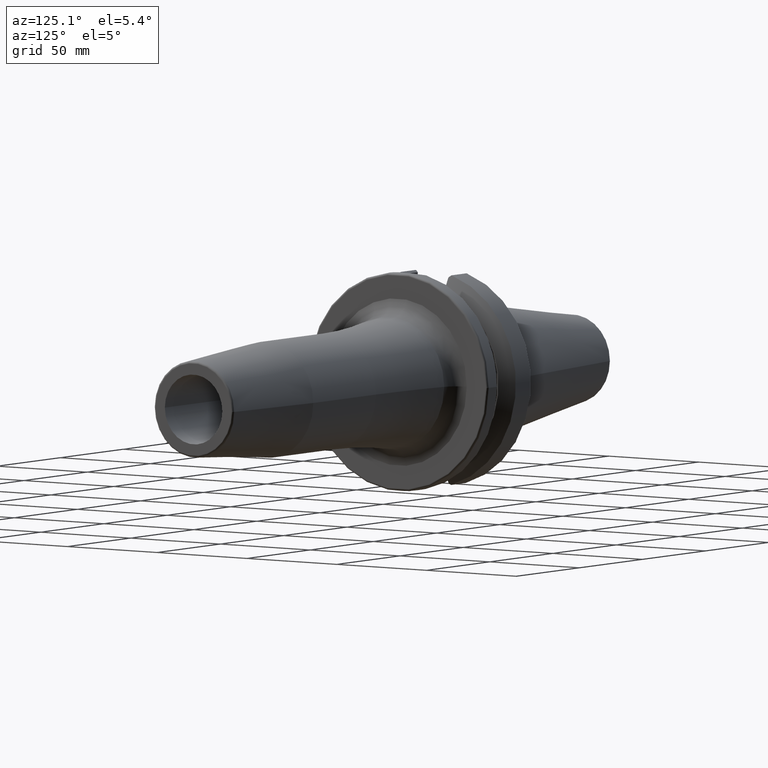
[diagram: clean part render]
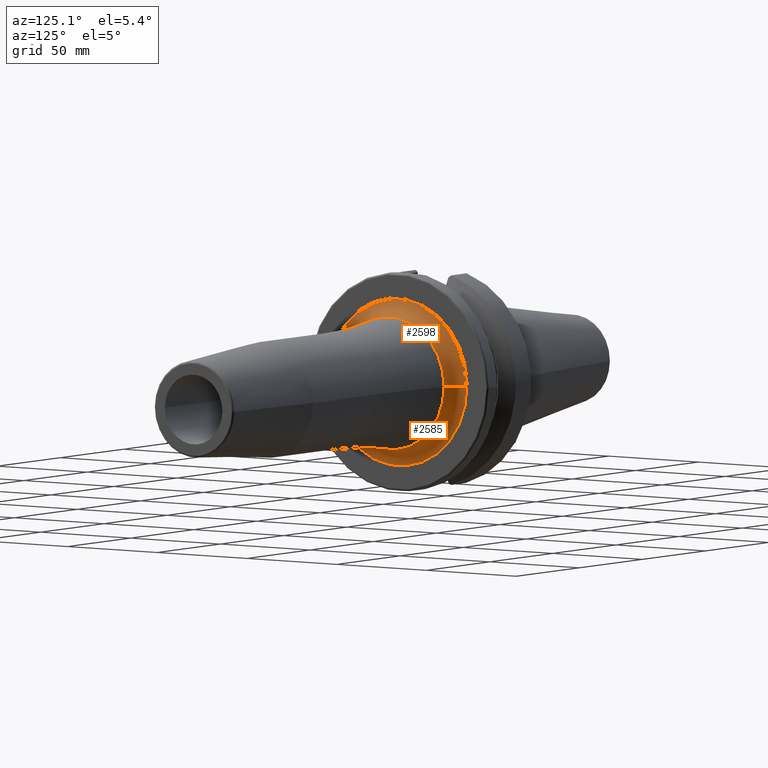
[diagram: same view with one multi-face feature highlighted, each face labeled with its STEP entity id]
A machine part, auxiliary view. The highlighted faces form ONE feature: a constant-radius fillet chain: 2 tangent blend faces with common blend radius 8 mm. The faces share edges in the B-rep.
Their STEP definitions:
[1] entity #2598 (Torus):
#839=CARTESIAN_POINT('',(3.8E1,0.E0,0.E0));
#840=DIRECTION('',(1.E0,0.E0,0.E0));
#841=DIRECTION('',(0.E0,1.E0,0.E0));
#842=AXIS2_PLACEMENT_3D('',#839,#840,#841);
#844=CARTESIAN_POINT('',(4.6E1,-3.830735609666E1,1.422806317208E-12));
#845=DIRECTION('',(0.E0,-3.714216434414E-14,-1.E0));
#846=DIRECTION('',(-1.E0,1.332267629550E-14,0.E0));
#847=AXIS2_PLACEMENT_3D('',#844,#845,#846);
#849=CARTESIAN_POINT('',(4.6E1,3.830735609666E1,-1.427497009487E-12));
#850=DIRECTION('',(0.E0,3.726446234920E-14,1.E0));
#851=DIRECTION('',(-1.E0,-1.243449787580E-14,0.E0));
#852=AXIS2_PLACEMENT_3D('',#849,#850,#851);
#854=CARTESIAN_POINT('',(4.471232876712E1,0.E0,0.E0));
#855=DIRECTION('',(1.E0,0.E0,0.E0));
#856=DIRECTION('',(0.E0,1.E0,0.E0));
#857=AXIS2_PLACEMENT_3D('',#854,#855,#856);
#1431=CARTESIAN_POINT('',(3.8E1,-3.830735609666E1,-1.542755649977E-13));
#1432=CARTESIAN_POINT('',(3.8E1,3.830735609666E1,1.495842668949E-13));
#1433=VERTEX_POINT('',#1431);
#1434=VERTEX_POINT('',#1432);
#1435=CARTESIAN_POINT('',(4.471232876712E1,-3.041166722259E1,0.E0));
#1436=CARTESIAN_POINT('',(4.471232876712E1,3.041166722259E1,0.E0));
#1437=VERTEX_POINT('',#1435);
#1438=VERTEX_POINT('',#1436);
#2586=CARTESIAN_POINT('',(4.6E1,0.E0,0.E0));
#2587=DIRECTION('',(1.E0,0.E0,0.E0));
#2588=DIRECTION('',(0.E0,9.999846740546E-1,-5.536393764447E-3));
#2589=AXIS2_PLACEMENT_3D('',#2586,#2587,#2588);
#2590=TOROIDAL_SURFACE('',#2589,3.830735609666E1,8.E0);
#2591=ORIENTED_EDGE('',*,*,#2566,.F.);
#2592=ORIENTED_EDGE('',*,*,#2581,.T.);
#2594=ORIENTED_EDGE('',*,*,#2593,.T.);
#2595=ORIENTED_EDGE('',*,*,#2577,.F.);
#2596=EDGE_LOOP('',(#2591,#2592,#2594,#2595));
#2597=FACE_OUTER_BOUND('',#2596,.F.);
#2598=ADVANCED_FACE('',(#2597),#2590,.F.);
#843=CIRCLE('',#842,3.830735609666E1);
#848=CIRCLE('',#847,8.E0);
#853=CIRCLE('',#852,8.E0);
#858=CIRCLE('',#857,3.041166722259E1);
#2566=EDGE_CURVE('',#1434,#1433,#843,.T.);
#2577=EDGE_CURVE('',#1433,#1437,#848,.T.);
#2581=EDGE_CURVE('',#1434,#1438,#853,.T.);
#2593=EDGE_CURVE('',#1438,#1437,#858,.T.);
[2] entity #2585 (Torus):
#834=CARTESIAN_POINT('',(3.8E1,0.E0,0.E0));
#835=DIRECTION('',(1.E0,0.E0,0.E0));
#836=DIRECTION('',(0.E0,-1.E0,0.E0));
#837=AXIS2_PLACEMENT_3D('',#834,#835,#836);
#844=CARTESIAN_POINT('',(4.6E1,-3.830735609666E1,1.422806317208E-12));
#845=DIRECTION('',(0.E0,-3.714216434414E-14,-1.E0));
#846=DIRECTION('',(-1.E0,1.332267629550E-14,0.E0));
#847=AXIS2_PLACEMENT_3D('',#844,#845,#846);
#849=CARTESIAN_POINT('',(4.6E1,3.830735609666E1,-1.427497009487E-12));
#850=DIRECTION('',(0.E0,3.726446234920E-14,1.E0));
#851=DIRECTION('',(-1.E0,-1.243449787580E-14,0.E0));
#852=AXIS2_PLACEMENT_3D('',#849,#850,#851);
#859=CARTESIAN_POINT('',(4.471232876712E1,0.E0,0.E0));
#860=DIRECTION('',(1.E0,0.E0,0.E0));
#861=DIRECTION('',(0.E0,-1.E0,0.E0));
#862=AXIS2_PLACEMENT_3D('',#859,#860,#861);
#1431=CARTESIAN_POINT('',(3.8E1,-3.830735609666E1,-1.542755649977E-13));
#1432=CARTESIAN_POINT('',(3.8E1,3.830735609666E1,1.495842668949E-13));
#1433=VERTEX_POINT('',#1431);
#1434=VERTEX_POINT('',#1432);
#1435=CARTESIAN_POINT('',(4.471232876712E1,-3.041166722259E1,0.E0));
#1436=CARTESIAN_POINT('',(4.471232876712E1,3.041166722259E1,0.E0));
#1437=VERTEX_POINT('',#1435);
#1438=VERTEX_POINT('',#1436);
#2571=CARTESIAN_POINT('',(4.6E1,0.E0,0.E0));
#2572=DIRECTION('',(1.E0,0.E0,0.E0));
#2573=DIRECTION('',(0.E0,-9.999846740546E-1,5.536393764446E-3));
#2574=AXIS2_PLACEMENT_3D('',#2571,#2572,#2573);
#2575=TOROIDAL_SURFACE('',#2574,3.830735609666E1,8.E0);
#2576=ORIENTED_EDGE('',*,*,#2564,.F.);
#2578=ORIENTED_EDGE('',*,*,#2577,.T.);
#2580=ORIENTED_EDGE('',*,*,#2579,.T.);
#2582=ORIENTED_EDGE('',*,*,#2581,.F.);
#2583=EDGE_LOOP('',(#2576,#2578,#2580,#2582));
#2584=FACE_OUTER_BOUND('',#2583,.F.);
#2585=ADVANCED_FACE('',(#2584),#2575,.F.);
#838=CIRCLE('',#837,3.830735609666E1);
#848=CIRCLE('',#847,8.E0);
#853=CIRCLE('',#852,8.E0);
#863=CIRCLE('',#862,3.041166722259E1);
#2564=EDGE_CURVE('',#1433,#1434,#838,.T.);
#2577=EDGE_CURVE('',#1433,#1437,#848,.T.);
#2579=EDGE_CURVE('',#1437,#1438,#863,.T.);
#2581=EDGE_CURVE('',#1434,#1438,#853,.T.);